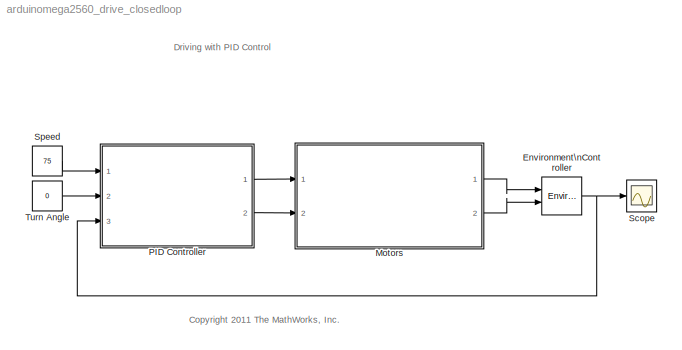
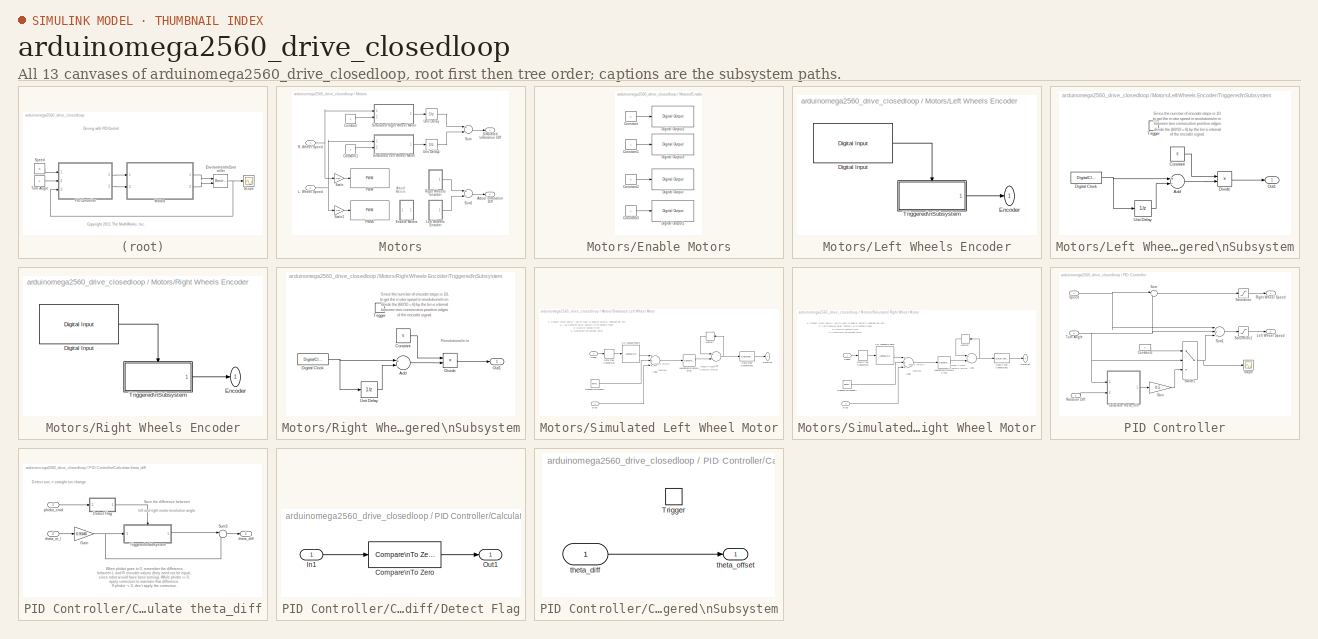
[diagram: thumbnail index - all 13 canvases of the model, root first then tree order]
MODEL arduinomega2560_drive_closedloop
KIND model
CONFIG InitFcn = k_synchronize=2;\nlego_drive_closedloop_InitData.mdl = get_param(bdroot,'Name');\nlego_drive_closedloop_InitData.cs = getActiveConfigSet(lego_drive_closedloop_InitData.mdl);\n\n
CONFIG PreLoadFcn = k_synchronize=2;
BLOCK [Reference] Environment\nController  REF=simulink/Signal\nRouting/Environment\nController
  Ports = [2, 1]
  SID = 395
  SourceBlock = simulink/Signal\nRouting/Environment\nController
  SourceProductBaseCode = SL
  SourceProductName = Simulink
  SourceType = Environment Controller
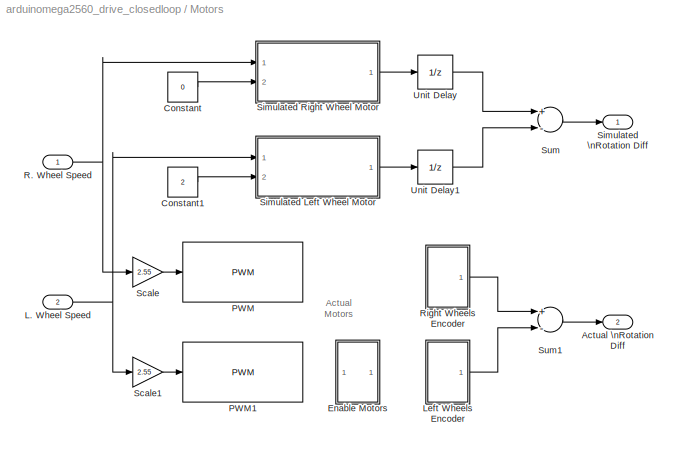
BLOCK [SubSystem] Motors
  MinAlgLoopOccurrences = on
  Ports = [2, 2]
  RequestExecContextInheritance = off
  SID = 396
  VariantControl = DoSim
BLOCK [Outport] Motors/Actual \nRotation Diff
  IconDisplay = Port number
  Port = 2
  SID = 440
BLOCK [Constant] Motors/Constant
  OutDataTypeStr = single
  SID = 399
  Value = 0
BLOCK [Constant] Motors/Constant1
  OutDataTypeStr = single
  SID = 400
  Value = 2
BLOCK [SubSystem] Motors/Enable Motors
  Ports = []
  RequestExecContextInheritance = off
  SID = 487
BLOCK [Constant] Motors/Enable Motors/Constant
  OutDataTypeStr = boolean
  SID = 488
  Value = 0
BLOCK [Constant] Motors/Enable Motors/Constant1
  OutDataTypeStr = boolean
  SID = 489
BLOCK [Constant] Motors/Enable Motors/Constant2
  OutDataTypeStr = boolean
  SID = 490
  Value = 0
BLOCK [Constant] Motors/Enable Motors/Constant3
  OutDataTypeStr = boolean
  SID = 491
BLOCK [Reference] Motors/Enable Motors/Digital Output  REF=arduinolib/Digital Output
  Ports = [1]
  SID = 492
  SourceBlock = arduinolib/Digital Output
  SourceProductBaseCode = ARDUINO
  SourceProductName = Simulink Support Package for Arduino Hardware
  SourceType = Arduino Digital Output
  pinNumber = 2
BLOCK [Reference] Motors/Enable Motors/Digital Output1  REF=arduinolib/Digital Output
  Ports = [1]
  SID = 493
  SourceBlock = arduinolib/Digital Output
  SourceProductBaseCode = ARDUINO
  SourceProductName = Simulink Support Package for Arduino Hardware
  SourceType = Arduino Digital Output
  pinNumber = 3
BLOCK [Reference] Motors/Enable Motors/Digital Output2  REF=arduinolib/Digital Output
  Ports = [1]
  SID = 494
  SourceBlock = arduinolib/Digital Output
  SourceProductBaseCode = ARDUINO
  SourceProductName = Simulink Support Package for Arduino Hardware
  SourceType = Arduino Digital Output
  pinNumber = 4
BLOCK [Reference] Motors/Enable Motors/Digital Output3  REF=arduinolib/Digital Output
  Ports = [1]
  SID = 495
  SourceBlock = arduinolib/Digital Output
  SourceProductBaseCode = ARDUINO
  SourceProductName = Simulink Support Package for Arduino Hardware
  SourceType = Arduino Digital Output
  pinNumber = 5
BLOCK [Inport] Motors/L. Wheel Speed
  IconDisplay = Port number
  Port = 2
  SID = 398
BLOCK [SubSystem] Motors/Left Wheels Encoder
  Ports = [0, 1]
  RequestExecContextInheritance = off
  SID = 533
BLOCK [Reference] Motors/Left Wheels Encoder/Digital Input  REF=arduinolib/Digital Input
  Ports = [0, 1]
  SID = 534
  SourceBlock = arduinolib/Digital Input
  SourceProductBaseCode = ARDUINO
  SourceProductName = Simulink Support Package for Arduino Hardware
  SourceType = Arduino Digital Input
  pinNumber = 9
  sampleTime = 0.001
BLOCK [Outport] Motors/Left Wheels Encoder/Encoder
  IconDisplay = Port number
  SID = 543
BLOCK [SubSystem] Motors/Left Wheels Encoder/Triggered\nSubsystem
  Ports = [0, 1, 0, 1]
  RequestExecContextInheritance = off
  SID = 535
  TreatAsAtomicUnit = on
BLOCK [Sum] Motors/Left Wheels Encoder/Triggered\nSubsystem/Add
  InputSameDT = off
  Inputs = +-
  OutDataTypeStr = Inherit: Inherit via internal rule
  Ports = [2, 1]
  SID = 537
  SaturateOnIntegerOverflow = off
BLOCK [Constant] Motors/Left Wheels Encoder/Triggered\nSubsystem/Constant
  SID = 538
  Value = 6
BLOCK [DigitalClock] Motors/Left Wheels Encoder/Triggered\nSubsystem/Digital Clock
  SID = 539
  SampleTime = -1
BLOCK [Product] Motors/Left Wheels Encoder/Triggered\nSubsystem/Divide
  InputSameDT = off
  Inputs = */
  OutDataTypeStr = int32
  Ports = [2, 1]
  RndMeth = Floor
  SID = 540
  SaturateOnIntegerOverflow = off
BLOCK [Outport] Motors/Left Wheels Encoder/Triggered\nSubsystem/Out1
  IconDisplay = Port number
  SID = 542
BLOCK [TriggerPort] Motors/Left Wheels Encoder/Triggered\nSubsystem/Trigger
  Ports = []
  SID = 536
  StatesWhenEnabling = held
  VariantControl = (inherit)
BLOCK [UnitDelay] Motors/Left Wheels Encoder/Triggered\nSubsystem/Unit Delay
  HasFrameUpgradeWarning = on
  SID = 541
  SampleTime = -1
BLOCK [Reference] Motors/PWM  REF=arduinolib/PWM
  Ports = [1]
  SID = 482
  SourceBlock = arduinolib/PWM
  SourceProductBaseCode = ARDUINO
  SourceProductName = Simulink Support Package for Arduino Hardware
  SourceType = Arduino PWM
  pinNumber = 10
BLOCK [Reference] Motors/PWM1  REF=arduinolib/PWM
  Ports = [1]
  SID = 483
  SourceBlock = arduinolib/PWM
  SourceProductBaseCode = ARDUINO
  SourceProductName = Simulink Support Package for Arduino Hardware
  SourceType = Arduino PWM
  pinNumber = 11
BLOCK [Inport] Motors/R. Wheel Speed
  IconDisplay = Port number
  SID = 397
BLOCK [SubSystem] Motors/Right Wheels Encoder
  Ports = [0, 1]
  RequestExecContextInheritance = off
  SID = 522
BLOCK [Reference] Motors/Right Wheels Encoder/Digital Input  REF=arduinolib/Digital Input
  Ports = [0, 1]
  SID = 523
  SourceBlock = arduinolib/Digital Input
  SourceProductBaseCode = ARDUINO
  SourceProductName = Simulink Support Package for Arduino Hardware
  SourceType = Arduino Digital Input
  pinNumber = 8
  sampleTime = 0.001
BLOCK [Outport] Motors/Right Wheels Encoder/Encoder
  IconDisplay = Port number
  SID = 532
BLOCK [SubSystem] Motors/Right Wheels Encoder/Triggered\nSubsystem
  Ports = [0, 1, 0, 1]
  RequestExecContextInheritance = off
  SID = 524
  TreatAsAtomicUnit = on
BLOCK [Sum] Motors/Right Wheels Encoder/Triggered\nSubsystem/Add
  InputSameDT = off
  Inputs = +-
  OutDataTypeStr = Inherit: Inherit via internal rule
  Ports = [2, 1]
  SID = 526
  SaturateOnIntegerOverflow = off
BLOCK [Constant] Motors/Right Wheels Encoder/Triggered\nSubsystem/Constant
  SID = 527
  Value = 6
BLOCK [DigitalClock] Motors/Right Wheels Encoder/Triggered\nSubsystem/Digital Clock
  SID = 528
  SampleTime = -1
BLOCK [Product] Motors/Right Wheels Encoder/Triggered\nSubsystem/Divide
  InputSameDT = off
  Inputs = */
  OutDataTypeStr = int32
  Ports = [2, 1]
  RndMeth = Floor
  SID = 529
  SaturateOnIntegerOverflow = off
BLOCK [Outport] Motors/Right Wheels Encoder/Triggered\nSubsystem/Out1
  IconDisplay = Port number
  SID = 531
BLOCK [TriggerPort] Motors/Right Wheels Encoder/Triggered\nSubsystem/Trigger
  Ports = []
  SID = 525
  StatesWhenEnabling = held
  VariantControl = (inherit)
BLOCK [UnitDelay] Motors/Right Wheels Encoder/Triggered\nSubsystem/Unit Delay
  HasFrameUpgradeWarning = on
  SID = 530
  SampleTime = -1
BLOCK [Gain] Motors/Scale
  Gain = 2.55
  OutDataTypeStr = Inherit: Inherit via internal rule
  ParamDataTypeStr = Inherit: Inherit via internal rule
  SID = 545
  SaturateOnIntegerOverflow = off
BLOCK [Gain] Motors/Scale1
  Gain = 2.55
  OutDataTypeStr = Inherit: Inherit via internal rule
  ParamDataTypeStr = Inherit: Inherit via internal rule
  SID = 546
  SaturateOnIntegerOverflow = off
BLOCK [SubSystem] Motors/Simulated Left Wheel Motor
  Ports = [2, 1]
  RequestExecContextInheritance = off
  SID = 405
BLOCK [Lookup_n-D] Motors/Simulated Left Wheel Motor/1-D Lookup\nTable
  BreakpointsForDimension1 = [-100 0 100]
  ExtrapMethod = Clip
  NumberOfTableDimensions = 1
  Ports = [1, 1]
  RndMeth = Simplest
  SID = 408
  Table = [-360 0 360]
  UseLastTableValue = on
BLOCK [Sum] Motors/Simulated Left Wheel Motor/Add
  AccumDataTypeStr = single
  InputSameDT = off
  OutDataTypeStr = single
  Ports = [2, 1]
  SID = 409
  SaturateOnIntegerOverflow = off
BLOCK [Sum] Motors/Simulated Left Wheel Motor/Add1
  InputSameDT = off
  Inputs = +++
  OutDataTypeStr = single
  Ports = [3, 1]
  SID = 410
  SaturateOnIntegerOverflow = off
BLOCK [Inport] Motors/Simulated Left Wheel Motor/Bias
  IconDisplay = Port number
  Port = 2
  SID = 407
BLOCK [DataTypeConversion] Motors/Simulated Left Wheel Motor/Data Type Conversion
  OutDataTypeStr = double
  RndMeth = Round
  SID = 411
  SaturateOnIntegerOverflow = off
BLOCK [DataTypeConversion] Motors/Simulated Left Wheel Motor/Data Type Conversion1
  OutDataTypeStr = int32
  RndMeth = Floor
  SID = 412
  SaturateOnIntegerOverflow = off
BLOCK [Memory] Motors/Simulated Left Wheel Motor/Memory
  InheritSampleTime = on
  LinearizeAsDelay = on
  SID = 413
BLOCK [RandomNumber] Motors/Simulated Left Wheel Motor/Random\nNumber1
  SID = 414
  Seed = randi(1000)
  Variance = 5
BLOCK [Outport] Motors/Simulated Left Wheel Motor/Rotation
  IconDisplay = Port number
  SID = 416
BLOCK [Inport] Motors/Simulated Left Wheel Motor/Speed
  IconDisplay = Port number
  SID = 406
BLOCK [SampleTimeMath] Motors/Simulated Left Wheel Motor/Weighted\nSample Time
  SID = 415
  TsampMathOp = *
BLOCK [SubSystem] Motors/Simulated Right Wheel Motor
  Ports = [2, 1]
  RequestExecContextInheritance = off
  SID = 420
BLOCK [Lookup_n-D] Motors/Simulated Right Wheel Motor/1-D Lookup\nTable
  BreakpointsForDimension1 = [-100 0 100]
  ExtrapMethod = Clip
  NumberOfTableDimensions = 1
  Ports = [1, 1]
  RndMeth = Simplest
  SID = 423
  Table = [-360 0 360]
  UseLastTableValue = on
BLOCK [Sum] Motors/Simulated Right Wheel Motor/Add
  InputSameDT = off
  OutDataTypeStr = single
  Ports = [2, 1]
  SID = 424
  SaturateOnIntegerOverflow = off
BLOCK [Sum] Motors/Simulated Right Wheel Motor/Add1
  InputSameDT = off
  Inputs = +++
  OutDataTypeStr = single
  Ports = [3, 1]
  SID = 425
  SaturateOnIntegerOverflow = off
BLOCK [Inport] Motors/Simulated Right Wheel Motor/Bias
  IconDisplay = Port number
  Port = 2
  SID = 422
BLOCK [DataTypeConversion] Motors/Simulated Right Wheel Motor/Data Type Conversion
  OutDataTypeStr = double
  RndMeth = Round
  SID = 426
  SaturateOnIntegerOverflow = off
BLOCK [DataTypeConversion] Motors/Simulated Right Wheel Motor/Data Type Conversion1
  OutDataTypeStr = int32
  RndMeth = Floor
  SID = 427
  SaturateOnIntegerOverflow = off
BLOCK [Memory] Motors/Simulated Right Wheel Motor/Memory
  InheritSampleTime = on
  LinearizeAsDelay = on
  SID = 428
BLOCK [RandomNumber] Motors/Simulated Right Wheel Motor/Random\nNumber1
  SID = 429
  Seed = randi(1000)
  Variance = 5
BLOCK [Outport] Motors/Simulated Right Wheel Motor/Rotation
  IconDisplay = Port number
  SID = 431
BLOCK [Inport] Motors/Simulated Right Wheel Motor/Speed
  IconDisplay = Port number
  SID = 421
BLOCK [SampleTimeMath] Motors/Simulated Right Wheel Motor/Weighted\nSample Time
  SID = 430
  TsampMathOp = *
BLOCK [Outport] Motors/Simulated \nRotation Diff
  IconDisplay = Port number
  SID = 439
BLOCK [Sum] Motors/Sum
  InputSameDT = off
  Inputs = +-
  Ports = [2, 1]
  SID = 435
  SaturateOnIntegerOverflow = off
BLOCK [Sum] Motors/Sum1
  InputSameDT = off
  Inputs = +-
  Ports = [2, 1]
  SID = 436
  SaturateOnIntegerOverflow = off
BLOCK [UnitDelay] Motors/Unit Delay
  HasFrameUpgradeWarning = on
  SID = 437
  SampleTime = -1
BLOCK [UnitDelay] Motors/Unit Delay1
  HasFrameUpgradeWarning = on
  SID = 438
  SampleTime = -1
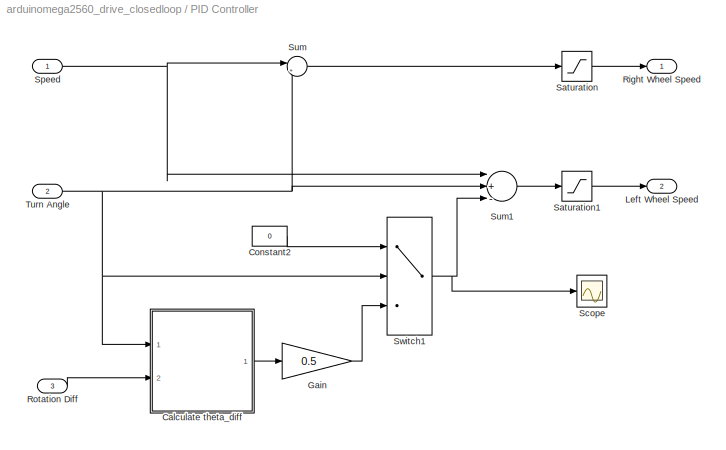
BLOCK [SubSystem] PID Controller
  Ports = [3, 2]
  RequestExecContextInheritance = off
  SID = 442
BLOCK [SubSystem] PID Controller/Calculate theta_diff
  Ports = [2, 1]
  RequestExecContextInheritance = off
  SID = 446
BLOCK [SubSystem] PID Controller/Calculate theta_diff/Detect Flag
  Ports = [1, 1]
  RequestExecContextInheritance = off
  SID = 449
BLOCK [Reference] PID Controller/Calculate theta_diff/Detect Flag/Compare\nTo Zero  REF=simulink/Logic and Bit\nOperations/Compare\nTo Zero
  OutDataTypeStr = boolean
  Ports = [1, 1]
  SID = 451
  SourceBlock = simulink/Logic and Bit\nOperations/Compare\nTo Zero
  SourceProductBaseCode = SL
  SourceProductName = Simulink
  SourceType = Compare To Zero
  ZeroCross = on
  relop = ~=
BLOCK [Inport] PID Controller/Calculate theta_diff/Detect Flag/In1
  IconDisplay = Port number
  SID = 450
BLOCK [Outport] PID Controller/Calculate theta_diff/Detect Flag/Out1
  IconDisplay = Port number
  SID = 452
BLOCK [Gain] PID Controller/Calculate theta_diff/Gain
  Gain = 0.9346
  OutDataTypeStr = Inherit: Inherit via internal rule
  ParamDataTypeStr = single
  SID = 549
  SaturateOnIntegerOverflow = off
BLOCK [Sum] PID Controller/Calculate theta_diff/Sum3
  IconShape = round
  InputSameDT = off
  Inputs = |-+
  Ports = [2, 1]
  SID = 453
  SaturateOnIntegerOverflow = off
BLOCK [SubSystem] PID Controller/Calculate theta_diff/Triggered\nSubsystem
  Ports = [1, 1, 0, 1]
  RequestExecContextInheritance = off
  SID = 454
  TreatAsAtomicUnit = on
BLOCK [TriggerPort] PID Controller/Calculate theta_diff/Triggered\nSubsystem/Trigger
  Ports = []
  SID = 456
  StatesWhenEnabling = held
  TriggerType = falling
  VariantControl = (inherit)
BLOCK [Inport] PID Controller/Calculate theta_diff/Triggered\nSubsystem/theta_diff
  IconDisplay = Port number
  LatchByDelayingOutsideSignal = on
  SID = 455
BLOCK [Outport] PID Controller/Calculate theta_diff/Triggered\nSubsystem/theta_offset
  IconDisplay = Port number
  SID = 457
BLOCK [Inport] PID Controller/Calculate theta_diff/phidot_cmd
  IconDisplay = Port number
  SID = 447
BLOCK [Outport] PID Controller/Calculate theta_diff/theta_diff
  IconDisplay = Port number
  SID = 458
BLOCK [Inport] PID Controller/Calculate theta_diff/theta_m_l
  IconDisplay = Port number
  Port = 2
  SID = 448
BLOCK [Constant] PID Controller/Constant2
  OutDataTypeStr = single
  SID = 463
  Value = 0
BLOCK [Gain] PID Controller/Gain
  Gain = 0.5
  OutDataTypeStr = Inherit: Inherit via internal rule
  ParamDataTypeStr = Inherit: Inherit via internal rule
  SID = 464
  SaturateOnIntegerOverflow = off
BLOCK [Outport] PID Controller/Left Wheel Speed
  IconDisplay = Port number
  Port = 2
  SID = 471
BLOCK [Outport] PID Controller/Right Wheel Speed
  IconDisplay = Port number
  SID = 470
BLOCK [Inport] PID Controller/Rotation Diff
  IconDisplay = Port number
  Port = 3
  SID = 445
BLOCK [Saturate] PID Controller/Saturation
  AttributesFormatString = max = %<UpperLimit>\\nmin = %<LowerLimit>
  InputPortMap = u0
  LowerLimit = 0
  Ports = [1, 1]
  SID = 465
  UpperLimit = 100
BLOCK [Saturate] PID Controller/Saturation1
  AttributesFormatString = max = %<UpperLimit>\\nmin = %<LowerLimit>
  InputPortMap = u0
  LowerLimit = 0
  Ports = [1, 1]
  SID = 466
  UpperLimit = 100
BLOCK [Scope] PID Controller/Scope
  Floating = off
  NumInputPorts = 1
  Ports = [1]
  SID = 547
  ScopeSpecificationString = C++SS(StrPVP('Location','[805, 391, 1168, 644]'),StrPVP('Open','off'),StrPVP('ZoomMode','yonly'),MxPVP('AxesTitles',54,'struct(''axes1'',''Encoder Output Mismatch'')'),MxPVP('ScopeGraphics',57,'struct(''FigureColor'',''[0.501960784313725 0.501960784313725 0.501960784313725]'',''AxesColor'',''[0 0 0]'',''AxesTickColor'',''[1 1 1]'',''LineColors'',''[1 1 0;1 0 1;0 1 1;1 0 0;0 1 0;0 0 1]'',''LineStyl...<+424ch>
BLOCK [Inport] PID Controller/Speed
  IconDisplay = Port number
  SID = 443
BLOCK [Sum] PID Controller/Sum
  IconShape = round
  InputSameDT = off
  Inputs = |++
  Ports = [2, 1]
  SID = 467
  SaturateOnIntegerOverflow = off
BLOCK [Sum] PID Controller/Sum1
  InputSameDT = off
  Inputs = |+-+
  Ports = [3, 1]
  SID = 468
  SaturateOnIntegerOverflow = off
BLOCK [Switch] PID Controller/Switch1
  Criteria = u2 ~= 0
  InputSameDT = off
  SID = 469
  SaturateOnIntegerOverflow = off
BLOCK [Inport] PID Controller/Turn Angle
  IconDisplay = Port number
  Port = 2
  SID = 444
BLOCK [Scope] Scope
  Floating = off
  NumInputPorts = 1
  Ports = [1]
  SID = 472
  ScopeSpecificationString = C++SS(StrPVP('Location','[807, 70, 1170, 323]'),StrPVP('Open','off'),MxPVP('AxesTitles',54,'struct(''axes1'',''Encoder Output Mismatch'')'),MxPVP('ScopeGraphics',57,'struct(''FigureColor'',''[0.501960784313725 0.501960784313725 0.501960784313725]'',''AxesColor'',''[0 0 0]'',''AxesTickColor'',''[1 1 1]'',''LineColors'',''[1 1 0;1 0 1;0 1 1;1 0 0;0 1 0;0 0 1]'',''LineStyles'',''-|-|-|-|-|-'',''LineW...<+363ch>
BLOCK [Constant] Speed
  OutDataTypeStr = single
  OutMax = 100
  OutMin = 0
  SID = 473
  SampleTime = 0.001
  Value = 75
BLOCK [Constant] Turn Angle
  OutDataTypeStr = single
  OutMax = 20
  OutMin = -20
  SID = 474
  SampleTime = 0.001
  Value = 0
ANNOTATION (root): <copyright redacted>
ANNOTATION (root): Driving with PID Control
ANNOTATION Motors: Actual\nMotors
ANNOTATION Motors/Left Wheels Encoder/Triggered\nSubsystem: Since the number of encoder steps is 10,\nto get the motor speed in revolutions/min \ndivide the (60/10 = 6) by the time interval \nbetween two consecutive positive edges \nof the encoder signal.
ANNOTATION Motors/Right Wheels Encoder/Triggered\nSubsystem: Revolutions/min
ANNOTATION Motors/Right Wheels Encoder/Triggered\nSubsystem: Since the number of encoder steps is 10,\nto get the motor speed in revolutions/min \ndivide the (60/10 = 6) by the time interval \nbetween two consecutive positive edges \nof the encoder signal.
ANNOTATION Motors/Simulated Left Wheel Motor: 1) Convert motor power (-100 to +100) to angular velocity (degrees per sec)\n2) Add Gaussian noise, possibly with nonzero mean\n3) Scale by sample time \n3 Accumulate the encoder value
ANNOTATION Motors/Simulated Left Wheel Motor: angular velocity\n[deg/sec]
ANNOTATION Motors/Simulated Left Wheel Motor: change in angle \nin sample interval
ANNOTATION Motors/Simulated Right Wheel Motor: 1) Convert motor power (-100 to +100) to angular velocity (degrees per sec)\n2) Add Gaussian noise, possibly with nonzero mean\n3) Scale by sample time \n3 Accumulate the encoder value
ANNOTATION Motors/Simulated Right Wheel Motor: angular velocity\n[deg/sec]
ANNOTATION Motors/Simulated Right Wheel Motor: change in angle \nin sample interval
ANNOTATION PID Controller/Calculate theta_diff: Detect turn -> straight run change
ANNOTATION PID Controller/Calculate theta_diff: Save the difference between\nleft and right motor revolution angle
ANNOTATION PID Controller/Calculate theta_diff: When phidot goes to 0, remember the difference \nbetween L and R encoder values (they need not be equal, \nsince robot would have been turning). While phidot == 0, \napply correction to maintain that difference. \nIf phidot ~= 0, don't apply the correction.
NET Environment\nController:1 -> PID Controller:3, Scope:1
LINE Motors/Constant1:1 -> Motors/Simulated Left Wheel Motor:2
LINE Motors/Constant:1 -> Motors/Simulated Right Wheel Motor:2
LINE Motors/Enable Motors/Constant1:1 -> Motors/Enable Motors/Digital Output3:1
LINE Motors/Enable Motors/Constant2:1 -> Motors/Enable Motors/Digital Output:1
LINE Motors/Enable Motors/Constant3:1 -> Motors/Enable Motors/Digital Output1:1
LINE Motors/Enable Motors/Constant:1 -> Motors/Enable Motors/Digital Output2:1
NET Motors/L. Wheel Speed:1 -> Motors/Scale1:1, Motors/Simulated Left Wheel Motor:1
LINE Motors/Left Wheels Encoder/Digital Input:1 -> Motors/Left Wheels Encoder/Triggered\nSubsystem:trigger
LINE Motors/Left Wheels Encoder/Triggered\nSubsystem/Add:1 -> Motors/Left Wheels Encoder/Triggered\nSubsystem/Divide:2
LINE Motors/Left Wheels Encoder/Triggered\nSubsystem/Constant:1 -> Motors/Left Wheels Encoder/Triggered\nSubsystem/Divide:1
NET Motors/Left Wheels Encoder/Triggered\nSubsystem/Digital Clock:1 -> Motors/Left Wheels Encoder/Triggered\nSubsystem/Add:1, Motors/Left Wheels Encoder/Triggered\nSubsystem/Unit Delay:1
LINE Motors/Left Wheels Encoder/Triggered\nSubsystem/Divide:1 -> Motors/Left Wheels Encoder/Triggered\nSubsystem/Out1:1
LINE Motors/Left Wheels Encoder/Triggered\nSubsystem/Unit Delay:1 -> Motors/Left Wheels Encoder/Triggered\nSubsystem/Add:2
LINE Motors/Left Wheels Encoder/Triggered\nSubsystem:1 -> Motors/Left Wheels Encoder/Encoder:1
LINE Motors/Left Wheels Encoder:1 -> Motors/Sum1:2
NET Motors/R. Wheel Speed:1 -> Motors/Scale:1, Motors/Simulated Right Wheel Motor:1
LINE Motors/Right Wheels Encoder/Digital Input:1 -> Motors/Right Wheels Encoder/Triggered\nSubsystem:trigger
LINE Motors/Right Wheels Encoder/Triggered\nSubsystem/Add:1 -> Motors/Right Wheels Encoder/Triggered\nSubsystem/Divide:2
LINE Motors/Right Wheels Encoder/Triggered\nSubsystem/Constant:1 -> Motors/Right Wheels Encoder/Triggered\nSubsystem/Divide:1
NET Motors/Right Wheels Encoder/Triggered\nSubsystem/Digital Clock:1 -> Motors/Right Wheels Encoder/Triggered\nSubsystem/Add:1, Motors/Right Wheels Encoder/Triggered\nSubsystem/Unit Delay:1
LINE Motors/Right Wheels Encoder/Triggered\nSubsystem/Divide:1 -> Motors/Right Wheels Encoder/Triggered\nSubsystem/Out1:1
LINE Motors/Right Wheels Encoder/Triggered\nSubsystem/Unit Delay:1 -> Motors/Right Wheels Encoder/Triggered\nSubsystem/Add:2
LINE Motors/Right Wheels Encoder/Triggered\nSubsystem:1 -> Motors/Right Wheels Encoder/Encoder:1
LINE Motors/Right Wheels Encoder:1 -> Motors/Sum1:1
LINE Motors/Scale1:1 -> Motors/PWM1:1
LINE Motors/Scale:1 -> Motors/PWM:1
LINE Motors/Simulated Left Wheel Motor/1-D Lookup\nTable:1 -> Motors/Simulated Left Wheel Motor/Add1:1
LINE Motors/Simulated Left Wheel Motor/Add1:1 -> Motors/Simulated Left Wheel Motor/Weighted\nSample Time:1
NET Motors/Simulated Left Wheel Motor/Add:1 -> Motors/Simulated Left Wheel Motor/Data Type Conversion1:1, Motors/Simulated Left Wheel Motor/Memory:1
LINE Motors/Simulated Left Wheel Motor/Bias:1 -> Motors/Simulated Left Wheel Motor/Add1:3
LINE Motors/Simulated Left Wheel Motor/Data Type Conversion1:1 -> Motors/Simulated Left Wheel Motor/Rotation:1
LINE Motors/Simulated Left Wheel Motor/Data Type Conversion:1 -> Motors/Simulated Left Wheel Motor/1-D Lookup\nTable:1
LINE Motors/Simulated Left Wheel Motor/Memory:1 -> Motors/Simulated Left Wheel Motor/Add:1
LINE Motors/Simulated Left Wheel Motor/Random\nNumber1:1 -> Motors/Simulated Left Wheel Motor/Add1:2
LINE Motors/Simulated Left Wheel Motor/Speed:1 -> Motors/Simulated Left Wheel Motor/Data Type Conversion:1
LINE Motors/Simulated Left Wheel Motor/Weighted\nSample Time:1 -> Motors/Simulated Left Wheel Motor/Add:2
LINE Motors/Simulated Left Wheel Motor:1 -> Motors/Unit Delay1:1
LINE Motors/Simulated Right Wheel Motor/1-D Lookup\nTable:1 -> Motors/Simulated Right Wheel Motor/Add1:1
LINE Motors/Simulated Right Wheel Motor/Add1:1 -> Motors/Simulated Right Wheel Motor/Weighted\nSample Time:1
NET Motors/Simulated Right Wheel Motor/Add:1 -> Motors/Simulated Right Wheel Motor/Data Type Conversion1:1, Motors/Simulated Right Wheel Motor/Memory:1
LINE Motors/Simulated Right Wheel Motor/Bias:1 -> Motors/Simulated Right Wheel Motor/Add1:3
LINE Motors/Simulated Right Wheel Motor/Data Type Conversion1:1 -> Motors/Simulated Right Wheel Motor/Rotation:1
LINE Motors/Simulated Right Wheel Motor/Data Type Conversion:1 -> Motors/Simulated Right Wheel Motor/1-D Lookup\nTable:1
LINE Motors/Simulated Right Wheel Motor/Memory:1 -> Motors/Simulated Right Wheel Motor/Add:1
LINE Motors/Simulated Right Wheel Motor/Random\nNumber1:1 -> Motors/Simulated Right Wheel Motor/Add1:2
LINE Motors/Simulated Right Wheel Motor/Speed:1 -> Motors/Simulated Right Wheel Motor/Data Type Conversion:1
LINE Motors/Simulated Right Wheel Motor/Weighted\nSample Time:1 -> Motors/Simulated Right Wheel Motor/Add:2
LINE Motors/Simulated Right Wheel Motor:1 -> Motors/Unit Delay:1
LINE Motors/Sum1:1 -> Motors/Actual \nRotation Diff:1
LINE Motors/Sum:1 -> Motors/Simulated \nRotation Diff:1
LINE Motors/Unit Delay1:1 -> Motors/Sum:2
LINE Motors/Unit Delay:1 -> Motors/Sum:1
LINE Motors:1 -> Environment\nController:1
LINE Motors:2 -> Environment\nController:2
LINE PID Controller/Calculate theta_diff/Detect Flag/Compare\nTo Zero:1 -> PID Controller/Calculate theta_diff/Detect Flag/Out1:1
LINE PID Controller/Calculate theta_diff/Detect Flag/In1:1 -> PID Controller/Calculate theta_diff/Detect Flag/Compare\nTo Zero:1
LINE PID Controller/Calculate theta_diff/Detect Flag:1 -> PID Controller/Calculate theta_diff/Triggered\nSubsystem:trigger
NET PID Controller/Calculate theta_diff/Gain:1 -> PID Controller/Calculate theta_diff/Sum3:2, PID Controller/Calculate theta_diff/Triggered\nSubsystem:1
LINE PID Controller/Calculate theta_diff/Sum3:1 -> PID Controller/Calculate theta_diff/theta_diff:1
LINE PID Controller/Calculate theta_diff/Triggered\nSubsystem/theta_diff:1 -> PID Controller/Calculate theta_diff/Triggered\nSubsystem/theta_offset:1
LINE PID Controller/Calculate theta_diff/Triggered\nSubsystem:1 -> PID Controller/Calculate theta_diff/Sum3:1
LINE PID Controller/Calculate theta_diff/phidot_cmd:1 -> PID Controller/Calculate theta_diff/Detect Flag:1
LINE PID Controller/Calculate theta_diff/theta_m_l:1 -> PID Controller/Calculate theta_diff/Gain:1
LINE PID Controller/Calculate theta_diff:1 -> PID Controller/Gain:1
LINE PID Controller/Constant2:1 -> PID Controller/Switch1:1
LINE PID Controller/Gain:1 -> PID Controller/Switch1:3
LINE PID Controller/Rotation Diff:1 -> PID Controller/Calculate theta_diff:2
LINE PID Controller/Saturation1:1 -> PID Controller/Left Wheel Speed:1
LINE PID Controller/Saturation:1 -> PID Controller/Right Wheel Speed:1
NET PID Controller/Speed:1 -> PID Controller/Sum1:1, PID Controller/Sum:1
LINE PID Controller/Sum1:1 -> PID Controller/Saturation1:1
LINE PID Controller/Sum:1 -> PID Controller/Saturation:1
NET PID Controller/Switch1:1 -> PID Controller/Scope:1, PID Controller/Sum1:3
NET PID Controller/Turn Angle:1 -> PID Controller/Calculate theta_diff:1, PID Controller/Sum1:2, PID Controller/Sum:2, PID Controller/Switch1:2
LINE PID Controller:1 -> Motors:1
LINE PID Controller:2 -> Motors:2
LINE Speed:1 -> PID Controller:1
LINE Turn Angle:1 -> PID Controller:2
note: NET lines group one-source signal fan-out (src -> all destinations, sorted); 1:1 wires keep LINE
